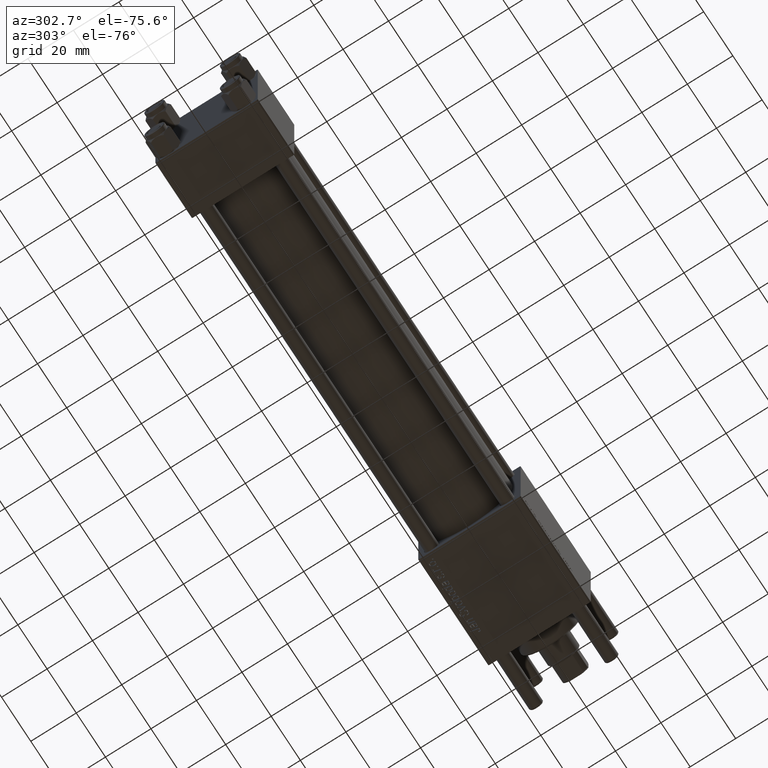
[diagram: clean part render]
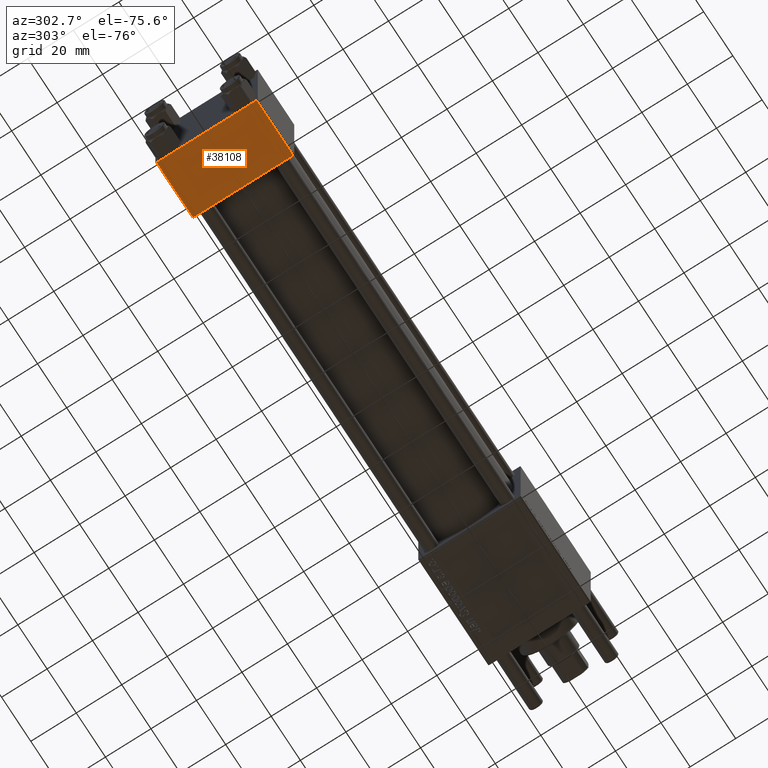
[diagram: same view with one face highlighted and labeled with its STEP entity id]
A machine part, auxiliary view. The second image highlights one B-rep face of the part: STEP entity #38108.
In plain terms, the highlighted planar face has unit normal (0, 0, -1).
Its self-contained STEP definition (entity closure, byte-faithful):
#4275 = VECTOR ( 'NONE', #16338, 1000.000000000000000 ) ;
#6934 = CARTESIAN_POINT ( 'NONE',  ( 25.00000000000000000, 22.50000000000000000, -22.49999999999999645 ) ) ;
#8119 = CARTESIAN_POINT ( 'NONE',  ( 0.000000000000000000, -21.99999999999997158, -22.50000000000000711 ) ) ;
#9753 = ORIENTED_EDGE ( 'NONE', *, *, #29274, .T. ) ;
#10777 = PLANE ( 'NONE',  #48509 ) ;
#11051 = VERTEX_POINT ( 'NONE', #8119 ) ;
#15779 = CARTESIAN_POINT ( 'NONE',  ( 25.00000000000000000, 21.99999999999999289, -22.49999999999999645 ) ) ;
#16338 = DIRECTION ( 'NONE',  ( 1.000000000000000000, 0.000000000000000000, 0.000000000000000000 ) ) ;
#17534 = ORIENTED_EDGE ( 'NONE', *, *, #29009, .T. ) ;
#18234 = VECTOR ( 'NONE', #33933, 1000.000000000000000 ) ;
#20042 = VERTEX_POINT ( 'NONE', #47392 ) ;
#20924 = LINE ( 'NONE', #52533, #4275 ) ;
#23416 = FACE_OUTER_BOUND ( 'NONE', #26529, .T. ) ;
#24443 = DIRECTION ( 'NONE',  ( 0.000000000000000000, -1.000000000000000000, -2.312964634635742957E-16 ) ) ;
#26529 = EDGE_LOOP ( 'NONE', ( #51116, #17534, #38820, #9753 ) ) ;
#27747 = EDGE_CURVE ( 'NONE', #40253, #41309, #46308, .T. ) ;
#29009 = EDGE_CURVE ( 'NONE', #20042, #40253, #20924, .T. ) ;
#29226 = LINE ( 'NONE', #33278, #53890 ) ;
#29274 = EDGE_CURVE ( 'NONE', #41309, #11051, #29226, .T. ) ;
#29615 = CARTESIAN_POINT ( 'NONE',  ( 0.000000000000000000, 22.50000000000000000, -22.49999999999999645 ) ) ;
#33278 = CARTESIAN_POINT ( 'NONE',  ( 0.000000000000000000, -21.99999999999998579, -22.50000000000000711 ) ) ;
#33933 = DIRECTION ( 'NONE',  ( 0.000000000000000000, -1.000000000000000000, -2.312964634635742957E-16 ) ) ;
#36617 = CARTESIAN_POINT ( 'NONE',  ( 25.00000000000000000, 22.50000000000000000, -22.49999999999999645 ) ) ;
#37260 = CARTESIAN_POINT ( 'NONE',  ( 25.00000000000000000, -21.99999999999997158, -22.50000000000000711 ) ) ;
#38108 = ADVANCED_FACE ( 'NONE', ( #23416 ), #10777, .T. ) ;
#38711 = EDGE_CURVE ( 'NONE', #20042, #11051, #56350, .T. ) ;
#38820 = ORIENTED_EDGE ( 'NONE', *, *, #27747, .T. ) ;
#40253 = VERTEX_POINT ( 'NONE', #15779 ) ;
#40956 = DIRECTION ( 'NONE',  ( 0.000000000000000000, 1.000000000000000000, 2.312964634635742957E-16 ) ) ;
#41309 = VERTEX_POINT ( 'NONE', #37260 ) ;
#45581 = VECTOR ( 'NONE', #24443, 1000.000000000000000 ) ;
#46308 = LINE ( 'NONE', #6934, #45581 ) ;
#46397 = DIRECTION ( 'NONE',  ( 0.000000000000000000, 2.312964634635742957E-16, -1.000000000000000000 ) ) ;
#47392 = CARTESIAN_POINT ( 'NONE',  ( 0.000000000000000000, 21.99999999999999289, -22.49999999999999645 ) ) ;
#48509 = AXIS2_PLACEMENT_3D ( 'NONE', #36617, #46397, #40956 ) ;
#50816 = DIRECTION ( 'NONE',  ( -1.000000000000000000, 0.000000000000000000, 0.000000000000000000 ) ) ;
#51116 = ORIENTED_EDGE ( 'NONE', *, *, #38711, .F. ) ;
#52533 = CARTESIAN_POINT ( 'NONE',  ( 25.00000000000000000, 21.99999999999999289, -22.49999999999999645 ) ) ;
#53890 = VECTOR ( 'NONE', #50816, 1000.000000000000000 ) ;
#56350 = LINE ( 'NONE', #29615, #18234 ) ;